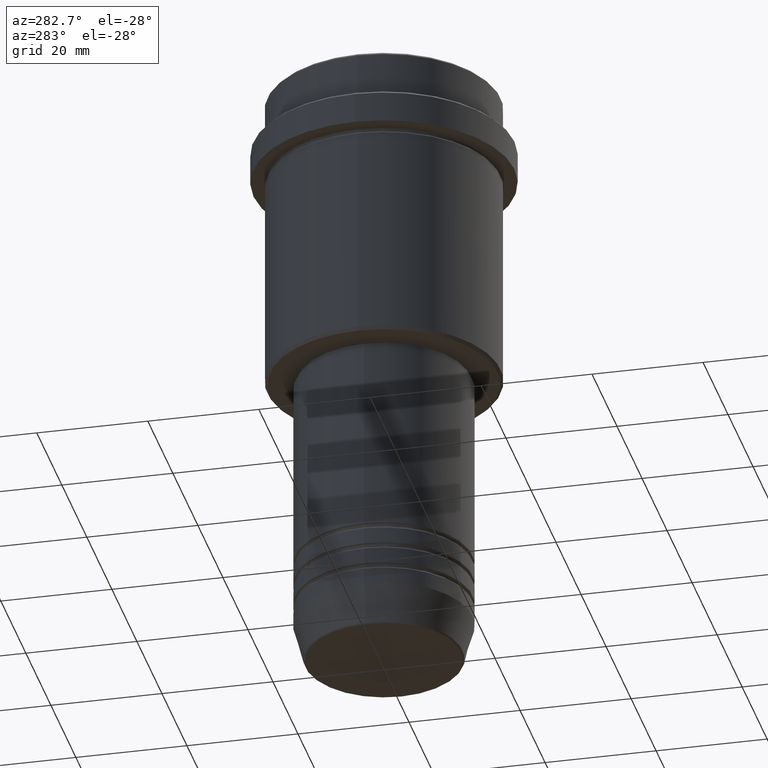
[diagram: clean part render]
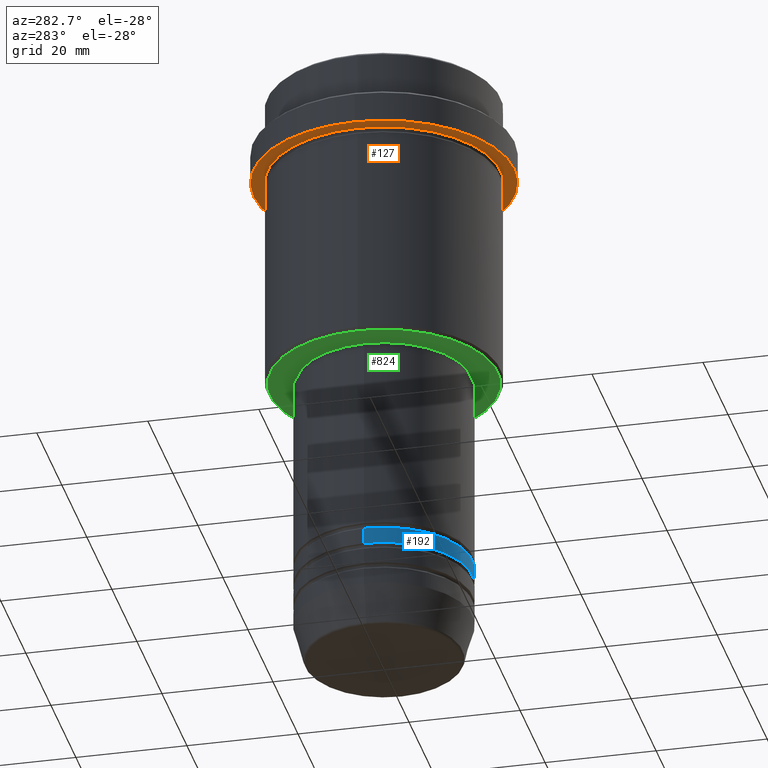
[diagram: same view with three faces highlighted in distinct colors, each labeled with its STEP entity id]
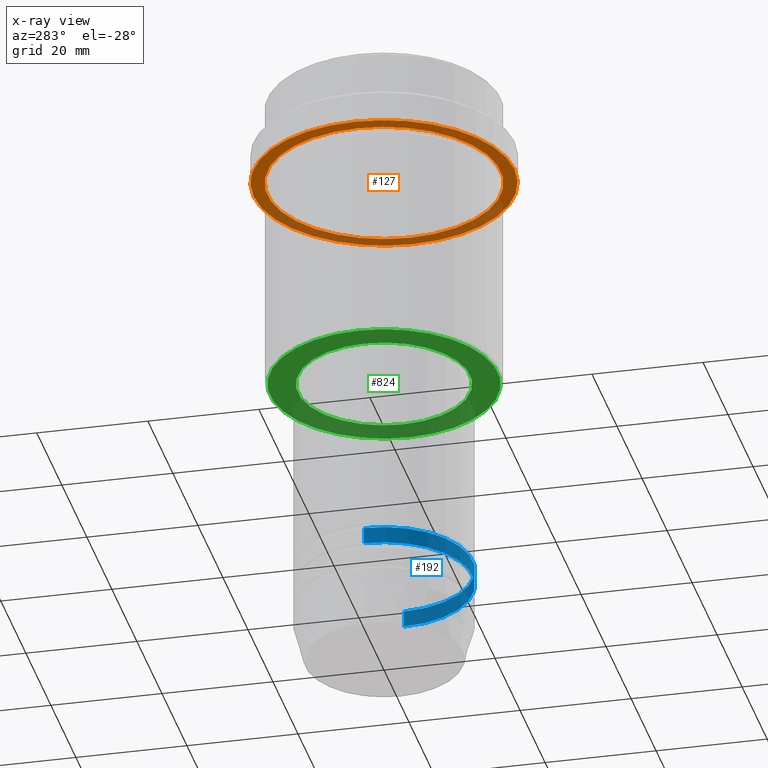
[diagram: x-ray of the same camera — body ghosted, the three highlighted faces saturated]
A machine part, auxiliary view with three faces highlighted in distinct colors.
The next image is the same camera in x-ray (body ghosted, the three faces saturated) — at least one of them is partly hidden behind the body in this view.
Their STEP definitions:

[orange] entity #127 — the highlighted planar face has unit normal (0, 0, -1).
#60 = FACE_BOUND ( 'NONE', #151, .T. ) ;
#99 = CARTESIAN_POINT ( 'NONE',  ( 20.99999999999999289, 2.571758278209440872E-15, -15.00000000000000178 ) ) ;
#127 = ADVANCED_FACE ( 'NONE', ( #60, #479 ), #1372, .T. ) ;
#151 = EDGE_LOOP ( 'NONE', ( #1145, #1167 ) ) ;
#175 = DIRECTION ( 'NONE',  ( -1.000000000000000000, 0.000000000000000000, -0.000000000000000000 ) ) ;
#193 = DIRECTION ( 'NONE',  ( -0.000000000000000000, -0.000000000000000000, 1.000000000000000000 ) ) ;
#199 = DIRECTION ( 'NONE',  ( -0.000000000000000000, -0.000000000000000000, 1.000000000000000000 ) ) ;
#274 = CARTESIAN_POINT ( 'NONE',  ( -23.50000000000000711, 2.877919977996281109E-15, -15.00000000000000178 ) ) ;
#278 = DIRECTION ( 'NONE',  ( 0.000000000000000000, 0.000000000000000000, -1.000000000000000000 ) ) ;
#295 = AXIS2_PLACEMENT_3D ( 'NONE', #722, #193, #1043 ) ;
#417 = DIRECTION ( 'NONE',  ( 1.000000000000000000, 0.000000000000000000, 0.000000000000000000 ) ) ;
#440 = DIRECTION ( 'NONE',  ( -0.000000000000000000, -0.000000000000000000, 1.000000000000000000 ) ) ;
#479 = FACE_OUTER_BOUND ( 'NONE', #1157, .T. ) ;
#510 = DIRECTION ( 'NONE',  ( -0.000000000000000000, -0.000000000000000000, 1.000000000000000000 ) ) ;
#519 = CARTESIAN_POINT ( 'NONE',  ( 0.000000000000000000, 0.000000000000000000, -15.00000000000000178 ) ) ;
#559 = CIRCLE ( 'NONE', #655, 23.50000000000000355 ) ;
#581 = AXIS2_PLACEMENT_3D ( 'NONE', #1325, #440, #762 ) ;
#634 = AXIS2_PLACEMENT_3D ( 'NONE', #519, #510, #828 ) ;
#638 = CARTESIAN_POINT ( 'NONE',  ( -20.99999999999999289, 0.000000000000000000, -15.00000000000000178 ) ) ;
#655 = AXIS2_PLACEMENT_3D ( 'NONE', #1168, #199, #417 ) ;
#665 = CARTESIAN_POINT ( 'NONE',  ( 23.50000000000000355, 0.000000000000000000, -15.00000000000000178 ) ) ;
#722 = CARTESIAN_POINT ( 'NONE',  ( 0.000000000000000000, 0.000000000000000000, -15.00000000000000178 ) ) ;
#727 = VERTEX_POINT ( 'NONE', #665 ) ;
#751 = VERTEX_POINT ( 'NONE', #638 ) ;
#762 = DIRECTION ( 'NONE',  ( 1.000000000000000000, 0.000000000000000000, 0.000000000000000000 ) ) ;
#781 = CIRCLE ( 'NONE', #295, 20.99999999999999289 ) ;
#828 = DIRECTION ( 'NONE',  ( -1.000000000000000000, 0.000000000000000000, 0.000000000000000000 ) ) ;
#967 = EDGE_CURVE ( 'NONE', #727, #1349, #559, .T. ) ;
#985 = VERTEX_POINT ( 'NONE', #99 ) ;
#999 = EDGE_CURVE ( 'NONE', #985, #751, #781, .T. ) ;
#1036 = EDGE_CURVE ( 'NONE', #751, #985, #1330, .T. ) ;
#1043 = DIRECTION ( 'NONE',  ( -1.000000000000000000, 0.000000000000000000, 0.000000000000000000 ) ) ;
#1145 = ORIENTED_EDGE ( 'NONE', *, *, #1036, .T. ) ;
#1157 = EDGE_LOOP ( 'NONE', ( #1417, #1377 ) ) ;
#1167 = ORIENTED_EDGE ( 'NONE', *, *, #999, .T. ) ;
#1168 = CARTESIAN_POINT ( 'NONE',  ( 0.000000000000000000, 0.000000000000000000, -15.00000000000000178 ) ) ;
#1190 = EDGE_CURVE ( 'NONE', #1349, #727, #1202, .T. ) ;
#1202 = CIRCLE ( 'NONE', #581, 23.50000000000000355 ) ;
#1252 = CARTESIAN_POINT ( 'NONE',  ( 0.000000000000000000, 23.50000000000000355, -15.00000000000000178 ) ) ;
#1271 = AXIS2_PLACEMENT_3D ( 'NONE', #1252, #278, #175 ) ;
#1325 = CARTESIAN_POINT ( 'NONE',  ( 0.000000000000000000, 0.000000000000000000, -15.00000000000000178 ) ) ;
#1330 = CIRCLE ( 'NONE', #634, 20.99999999999999289 ) ;
#1349 = VERTEX_POINT ( 'NONE', #274 ) ;
#1372 = PLANE ( 'NONE',  #1271 ) ;
#1377 = ORIENTED_EDGE ( 'NONE', *, *, #1190, .F. ) ;
#1417 = ORIENTED_EDGE ( 'NONE', *, *, #967, .F. ) ;

[blue] entity #192 — the highlighted cylindrical surface (partial cylindrical patch) has radius 16 mm, axis along (-0, -0, 1).
#28 = VERTEX_POINT ( 'NONE', #1286 ) ;
#40 = LINE ( 'NONE', #791, #78 ) ;
#78 = VECTOR ( 'NONE', #1010, 1000.000000000000000 ) ;
#133 = DIRECTION ( 'NONE',  ( -0.000000000000000000, -0.000000000000000000, 1.000000000000000000 ) ) ;
#192 = ADVANCED_FACE ( 'NONE', ( #1219 ), #1353, .T. ) ;
#208 = ORIENTED_EDGE ( 'NONE', *, *, #1269, .T. ) ;
#218 = CARTESIAN_POINT ( 'NONE',  ( -16.00000000000000000, 1.959434878635765131E-15, -94.99999999999988631 ) ) ;
#259 = CARTESIAN_POINT ( 'NONE',  ( 0.000000000000000000, 0.000000000000000000, 0.000000000000000000 ) ) ;
#270 = ORIENTED_EDGE ( 'NONE', *, *, #1022, .T. ) ;
#317 = DIRECTION ( 'NONE',  ( -0.000000000000000000, -0.000000000000000000, 1.000000000000000000 ) ) ;
#337 = AXIS2_PLACEMENT_3D ( 'NONE', #741, #1413, #625 ) ;
#361 = CARTESIAN_POINT ( 'NONE',  ( 0.000000000000000000, 0.000000000000000000, -91.99999999999988631 ) ) ;
#404 = LINE ( 'NONE', #733, #672 ) ;
#429 = AXIS2_PLACEMENT_3D ( 'NONE', #361, #1363, #681 ) ;
#436 = VERTEX_POINT ( 'NONE', #1103 ) ;
#449 = DIRECTION ( 'NONE',  ( 1.000000000000000000, 0.000000000000000000, 0.000000000000000000 ) ) ;
#624 = ORIENTED_EDGE ( 'NONE', *, *, #972, .F. ) ;
#625 = DIRECTION ( 'NONE',  ( 1.000000000000000000, 0.000000000000000000, 0.000000000000000000 ) ) ;
#672 = VECTOR ( 'NONE', #317, 1000.000000000000000 ) ;
#673 = CIRCLE ( 'NONE', #429, 16.00000000000000000 ) ;
#681 = DIRECTION ( 'NONE',  ( 1.000000000000000000, 0.000000000000000000, 0.000000000000000000 ) ) ;
#733 = CARTESIAN_POINT ( 'NONE',  ( -16.00000000000000000, 1.959434878635765131E-15, 0.000000000000000000 ) ) ;
#741 = CARTESIAN_POINT ( 'NONE',  ( 0.000000000000000000, 0.000000000000000000, -94.99999999999988631 ) ) ;
#744 = VERTEX_POINT ( 'NONE', #1360 ) ;
#791 = CARTESIAN_POINT ( 'NONE',  ( 16.00000000000000000, 0.000000000000000000, 0.000000000000000000 ) ) ;
#872 = CIRCLE ( 'NONE', #337, 16.00000000000000000 ) ;
#972 = EDGE_CURVE ( 'NONE', #1408, #436, #404, .T. ) ;
#1010 = DIRECTION ( 'NONE',  ( -0.000000000000000000, -0.000000000000000000, 1.000000000000000000 ) ) ;
#1022 = EDGE_CURVE ( 'NONE', #1408, #744, #872, .T. ) ;
#1032 = ORIENTED_EDGE ( 'NONE', *, *, #1265, .F. ) ;
#1055 = EDGE_LOOP ( 'NONE', ( #624, #270, #208, #1032 ) ) ;
#1073 = AXIS2_PLACEMENT_3D ( 'NONE', #259, #133, #449 ) ;
#1103 = CARTESIAN_POINT ( 'NONE',  ( -16.00000000000000000, 1.959434878635765131E-15, -91.99999999999988631 ) ) ;
#1219 = FACE_OUTER_BOUND ( 'NONE', #1055, .T. ) ;
#1265 = EDGE_CURVE ( 'NONE', #436, #28, #673, .T. ) ;
#1269 = EDGE_CURVE ( 'NONE', #744, #28, #40, .T. ) ;
#1286 = CARTESIAN_POINT ( 'NONE',  ( 16.00000000000000000, 0.000000000000000000, -91.99999999999988631 ) ) ;
#1353 = CYLINDRICAL_SURFACE ( 'NONE', #1073, 16.00000000000000000 ) ;
#1360 = CARTESIAN_POINT ( 'NONE',  ( 16.00000000000000000, 0.000000000000000000, -94.99999999999988631 ) ) ;
#1363 = DIRECTION ( 'NONE',  ( -0.000000000000000000, -0.000000000000000000, 1.000000000000000000 ) ) ;
#1408 = VERTEX_POINT ( 'NONE', #218 ) ;
#1413 = DIRECTION ( 'NONE',  ( -0.000000000000000000, -0.000000000000000000, 1.000000000000000000 ) ) ;

[green] entity #824 — the highlighted planar face has unit normal (0, 0, -1).
#6 = AXIS2_PLACEMENT_3D ( 'NONE', #612, #501, #1128 ) ;
#18 = DIRECTION ( 'NONE',  ( 0.000000000000000000, 0.000000000000000000, -1.000000000000000000 ) ) ;
#35 = CARTESIAN_POINT ( 'NONE',  ( -20.49999999999998934, 2.541142108230757085E-15, -54.99999999999999289 ) ) ;
#49 = CIRCLE ( 'NONE', #431, 15.50000000000000000 ) ;
#76 = FACE_OUTER_BOUND ( 'NONE', #808, .T. ) ;
#102 = EDGE_LOOP ( 'NONE', ( #1063, #1393 ) ) ;
#144 = CARTESIAN_POINT ( 'NONE',  ( 20.49999999999998934, 0.000000000000000000, -54.99999999999999289 ) ) ;
#191 = DIRECTION ( 'NONE',  ( 1.000000000000000000, 0.000000000000000000, 0.000000000000000000 ) ) ;
#234 = AXIS2_PLACEMENT_3D ( 'NONE', #974, #18, #546 ) ;
#280 = PLANE ( 'NONE',  #6 ) ;
#304 = DIRECTION ( 'NONE',  ( -1.000000000000000000, 0.000000000000000000, 0.000000000000000000 ) ) ;
#325 = VERTEX_POINT ( 'NONE', #1320 ) ;
#379 = CARTESIAN_POINT ( 'NONE',  ( -15.50000000000000000, 1.898202538678397557E-15, -54.99999999999999289 ) ) ;
#431 = AXIS2_PLACEMENT_3D ( 'NONE', #1282, #955, #191 ) ;
#469 = DIRECTION ( 'NONE',  ( 1.000000000000000000, 0.000000000000000000, 0.000000000000000000 ) ) ;
#501 = DIRECTION ( 'NONE',  ( 0.000000000000000000, 0.000000000000000000, -1.000000000000000000 ) ) ;
#520 = AXIS2_PLACEMENT_3D ( 'NONE', #1374, #592, #469 ) ;
#540 = CARTESIAN_POINT ( 'NONE',  ( 0.000000000000000000, 0.000000000000000000, -54.99999999999999289 ) ) ;
#546 = DIRECTION ( 'NONE',  ( -1.000000000000000000, 0.000000000000000000, 0.000000000000000000 ) ) ;
#592 = DIRECTION ( 'NONE',  ( -0.000000000000000000, -0.000000000000000000, 1.000000000000000000 ) ) ;
#612 = CARTESIAN_POINT ( 'NONE',  ( 0.000000000000000000, 21.00000000000000000, -54.99999999999999289 ) ) ;
#717 = CIRCLE ( 'NONE', #234, 20.49999999999998934 ) ;
#730 = ORIENTED_EDGE ( 'NONE', *, *, #1161, .T. ) ;
#749 = DIRECTION ( 'NONE',  ( 0.000000000000000000, 0.000000000000000000, -1.000000000000000000 ) ) ;
#808 = EDGE_LOOP ( 'NONE', ( #730, #1140 ) ) ;
#824 = ADVANCED_FACE ( 'NONE', ( #76, #930 ), #280, .T. ) ;
#852 = CIRCLE ( 'NONE', #897, 20.49999999999998934 ) ;
#897 = AXIS2_PLACEMENT_3D ( 'NONE', #540, #749, #304 ) ;
#930 = FACE_BOUND ( 'NONE', #102, .T. ) ;
#955 = DIRECTION ( 'NONE',  ( -0.000000000000000000, -0.000000000000000000, 1.000000000000000000 ) ) ;
#974 = CARTESIAN_POINT ( 'NONE',  ( 0.000000000000000000, 0.000000000000000000, -54.99999999999999289 ) ) ;
#987 = EDGE_CURVE ( 'NONE', #1150, #1236, #852, .T. ) ;
#1058 = CIRCLE ( 'NONE', #520, 15.50000000000000000 ) ;
#1063 = ORIENTED_EDGE ( 'NONE', *, *, #1281, .T. ) ;
#1128 = DIRECTION ( 'NONE',  ( -1.000000000000000000, 0.000000000000000000, -0.000000000000000000 ) ) ;
#1140 = ORIENTED_EDGE ( 'NONE', *, *, #987, .T. ) ;
#1150 = VERTEX_POINT ( 'NONE', #35 ) ;
#1161 = EDGE_CURVE ( 'NONE', #1236, #1150, #717, .T. ) ;
#1236 = VERTEX_POINT ( 'NONE', #144 ) ;
#1281 = EDGE_CURVE ( 'NONE', #325, #1333, #1058, .T. ) ;
#1282 = CARTESIAN_POINT ( 'NONE',  ( 0.000000000000000000, 0.000000000000000000, -54.99999999999999289 ) ) ;
#1320 = CARTESIAN_POINT ( 'NONE',  ( 15.50000000000000000, 0.000000000000000000, -54.99999999999999289 ) ) ;
#1333 = VERTEX_POINT ( 'NONE', #379 ) ;
#1374 = CARTESIAN_POINT ( 'NONE',  ( 0.000000000000000000, 0.000000000000000000, -54.99999999999999289 ) ) ;
#1393 = ORIENTED_EDGE ( 'NONE', *, *, #1411, .T. ) ;
#1411 = EDGE_CURVE ( 'NONE', #1333, #325, #49, .T. ) ;